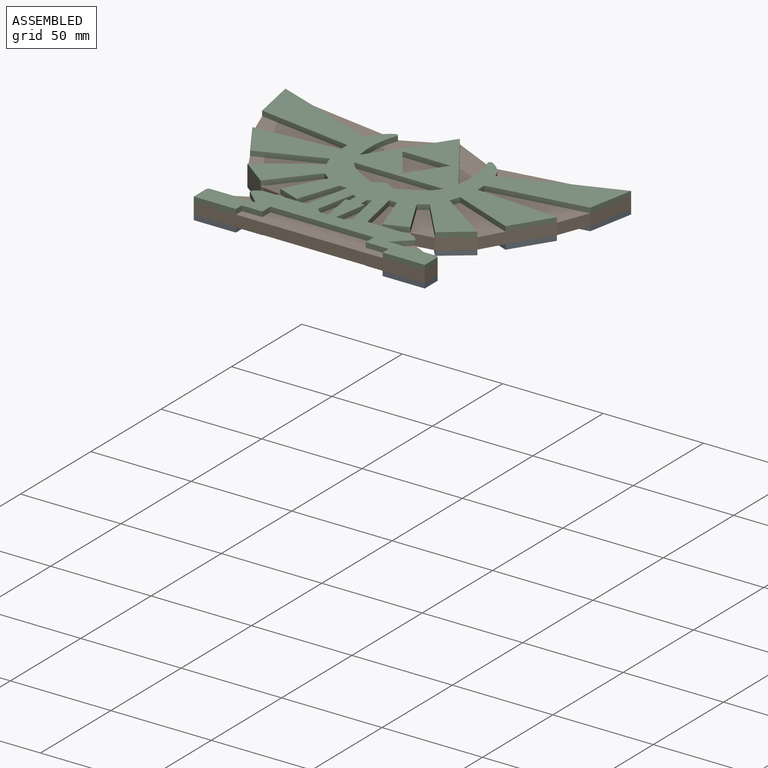
[diagram: assembled view]
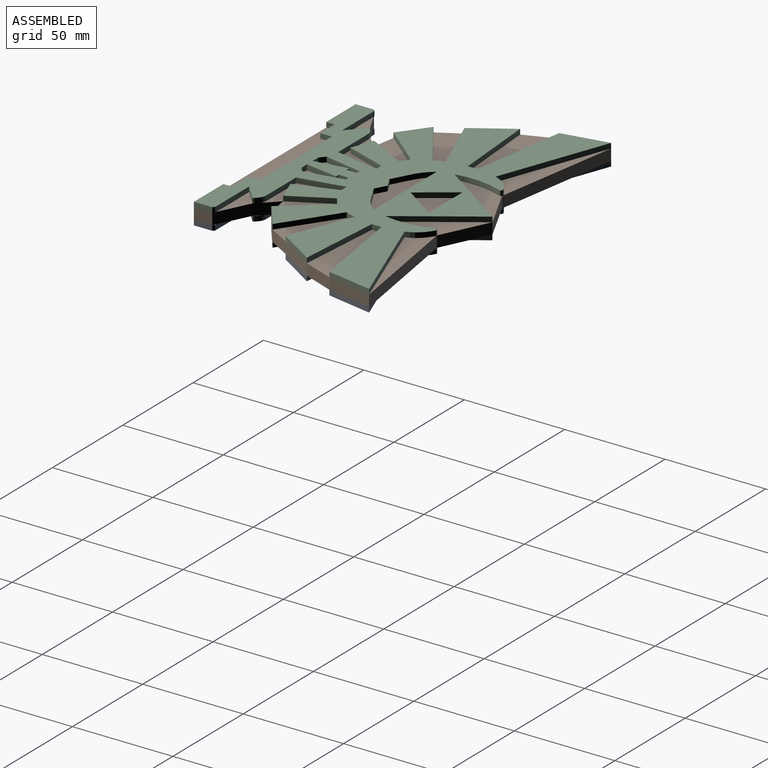
[diagram: assembled view, second angle]
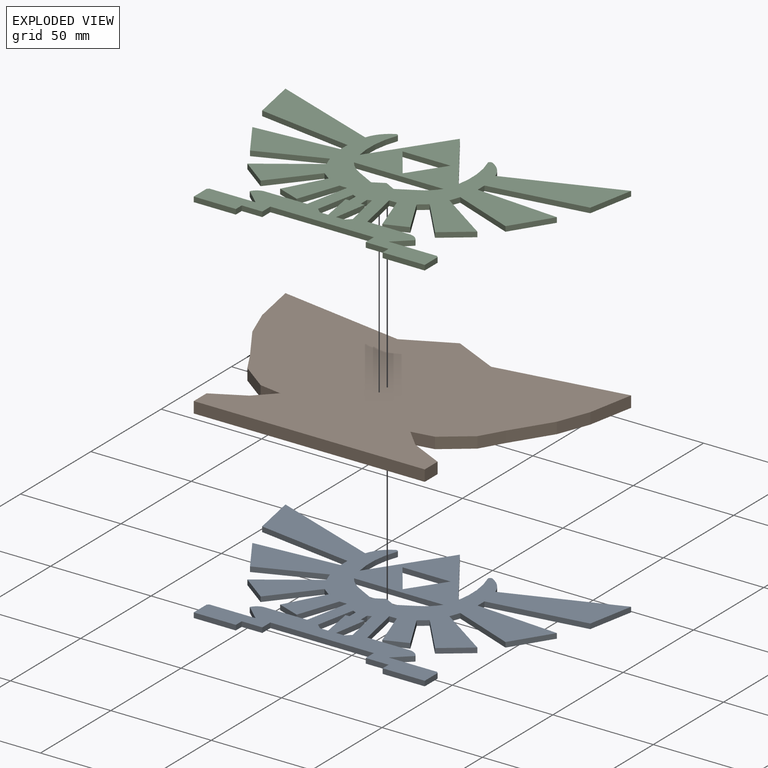
[diagram: exploded view]
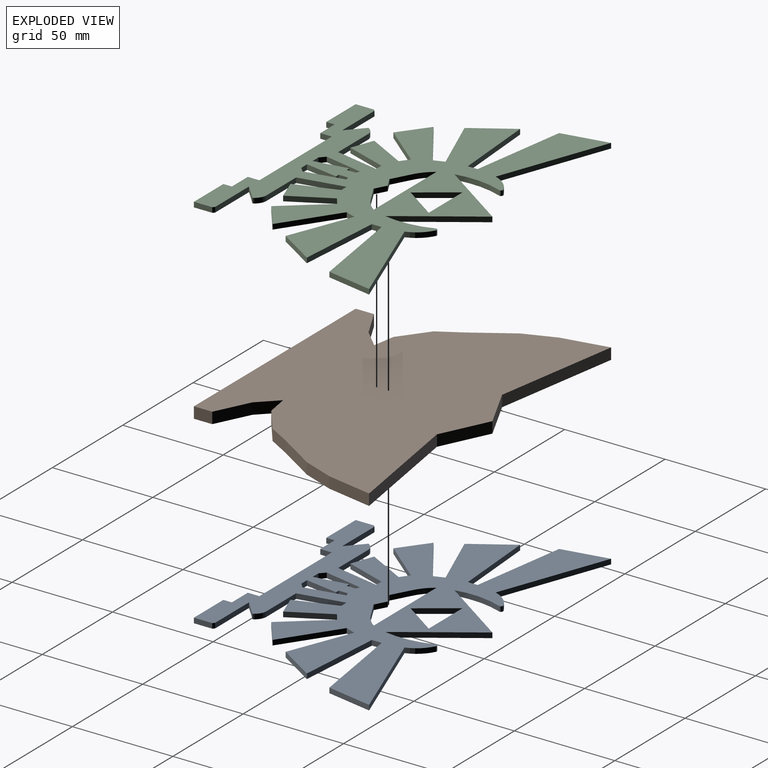
[diagram: exploded view, second angle]
ASSEMBLY  parts=3 mates=4
PART A: 93 faces, bbox 172.1x107.9x2.5 mm
  f0: plane 9.11x2.51mm, normal (1,0,0), area 22.9mm2, adj f1,f2,f91,f92
  f1: plane 20.96x2.51mm, normal (0,-1,0), area 52.7mm2, adj f0,f3,f91,f92
  f2: plane 2.51x0.84mm, normal (0.71,0.71,0), area 3mm2, adj f0,f4,f91,f92
  f3: plane 4.2x2.51mm, normal (-1,0,0), area 10.6mm2, adj f1,f72,f91,f92
  f4: plane 24.12x2.51mm, normal (0,1,0), area 60.6mm2, adj f2,f88,f91,f92
  f5: plane 20.96x2.51mm, normal (0,-1,0), area 52.7mm2, adj f6,f7,f91,f92
  f6: plane 4.2x2.51mm, normal (1,0,0), area 10.6mm2, adj f5,f89,f91,f92
  f7: plane 9.11x2.51mm, normal (-1,0,0), area 22.9mm2, adj f5,f9,f91,f92
  f8: plane 22.98x2.51mm, normal (0,1,0), area 57.8mm2, adj f9,f90,f91,f92
  f9: plane 2.51x0.84mm, normal (-0.71,0.71,0), area 3mm2, adj f7,f8,f91,f92
  f10: plane 5.6x3.02mm, normal (0.47,0.88,0), area 16mm2, adj f11,f16,f91,f92
  f11: plane 8.69x4.68mm, normal (-0.47,0.88,0), area 24.8mm2, adj f10,f12,f91,f92
  f12: cylinder r=21.14mm len=8mm, axis (0,0,1), area 27mm2, adj f11,f13,f91,f92
  f13: plane 44.58x2.51mm, normal (0,-1,0), area 112.1mm2, adj f12,f14,f91,f92
  f14: cylinder r=21.14mm len=8mm, axis (0,0,1), area 27mm2, adj f13,f15,f91,f92
  f15: plane 8.69x4.68mm, normal (0.47,0.88,0), area 24.8mm2, adj f14,f16,f91,f92
  f16: plane 5.6x3.02mm, normal (-0.47,0.88,0), area 16mm2, adj f10,f15,f91,f92
  f17: plane 2.51x1.91mm, normal (-0.35,-0.94,0), area 5.1mm2, adj f18,f19,f91,f92
  f18: plane 19.26x3.9mm, normal (0.98,-0.2,0), area 49.4mm2, adj f17,f64,f91,f92
  f19: plane 4.54x2.51mm, normal (-1,0,0), area 11.4mm2, adj f17,f67,f91,f92
  f20: plane 17.28x12.16mm, normal (0.82,0.58,0), area 53.1mm2, adj f21,f22,f91,f92
  f21: plane 17.28x11.8mm, normal (-0.83,0.56,0), area 52.6mm2, adj f20,f22,f91,f92
  f22: plane 23.96x2.51mm, normal (0,-1,0), area 60.2mm2, adj f20,f21,f91,f92
  f23: plane 4.54x2.51mm, normal (1,0,0), area 11.4mm2, adj f25,f68,f91,f92
  f24: plane 19.26x3.9mm, normal (-0.98,-0.2,0), area 49.4mm2, adj f25,f71,f91,f92
  f25: plane 2.51x1.91mm, normal (0.35,-0.94,0), area 5.1mm2, adj f23,f24,f91,f92
  f26: plane 22.02x4.46mm, normal (-0.98,0.2,0), area 56.5mm2, adj f27,f77,f91,f92
  f27: plane 3.78x2.51mm, normal (0,-1,0), area 9.5mm2, adj f26,f28,f91,f92
  f28: plane 20.4x7.01mm, normal (0.95,-0.33,0), area 54.2mm2, adj f27,f78,f91,f92
  f29: plane 19.46x10.49mm, normal (-0.88,0.47,0), area 55.6mm2, adj f30,f78,f91,f92
  f30: plane 4.26x3.19mm, normal (-0.6,-0.8,0), area 13.4mm2, adj f29,f31,f91,f92
  f31: plane 20.83x17.24mm, normal (0.77,-0.64,0), area 68mm2, adj f30,f32,f91,f92
  f32: plane 13.83x10.33mm, normal (-0.6,-0.8,0), area 43.4mm2, adj f31,f33,f91,f92
  f33: plane 26.69x18.22mm, normal (-0.56,0.83,0), area 81.3mm2, adj f32,f34,f91,f92
  f34: cylinder r=43.24mm len=5.08mm, axis (0,0,-1), area 13.6mm2, adj f33,f35,f91,f92
  f35: plane 31.19x12.36mm, normal (0.37,-0.93,0), area 84.4mm2, adj f34,f36,f91,f92
  f36: plane 19.11x12.22mm, normal (-0.84,-0.54,0), area 57.1mm2, adj f35,f37,f91,f92
  f37: plane 41.71x3.17mm, normal (-0.08,1,0), area 105.2mm2, adj f36,f38,f91,f92
  f38: plane 4.87x2.51mm, normal (-1,0,0), area 12.2mm2, adj f37,f39,f91,f92
  f39: plane 47.57x7.28mm, normal (-0.15,-0.99,0), area 121mm2, adj f38,f40,f91,f92
  f40: plane 22.81x4.37mm, normal (-0.98,-0.19,0), area 58.4mm2, adj f39,f41,f91,f92
  f41: plane 53.64x19.9mm, normal (0.35,0.94,0), area 143.9mm2, adj f40,f42,f91,f92
  f42: cylinder r=16.83mm len=9.79mm, axis (0,0,1), area 33.2mm2, adj f41,f43,f91,f92
  f43: cylinder r=0.84mm len=2.51mm, axis (0,0,1), area 1.7mm2, adj f42,f44,f91,f92
  f44: plane 2.51x0.29mm, normal (0.35,0.94,0), area 0.8mm2, adj f43,f45,f91,f92
  f45: cylinder r=0.84mm len=2.51mm, axis (0,0,1), area 3.3mm2, adj f44,f46,f91,f92
  f46: cylinder r=42.92mm len=23.69mm, axis (0,0,1), area 60.6mm2, adj f45,f47,f91,f92
  f47: plane 36.12x24.6mm, normal (-0.83,0.56,0), area 109.9mm2, adj f46,f48,f91,f92
  f48: plane 36.12x24.6mm, normal (0.83,0.56,0), area 109.9mm2, adj f47,f49,f91,f92
  f49: cylinder r=42.92mm len=23.69mm, axis (0,0,1), area 60.6mm2, adj f48,f50,f91,f92
  f50: cylinder r=0.84mm len=2.51mm, axis (0,0,1), area 3.3mm2, adj f49,f51,f91,f92
  f51: plane 2.51x0.29mm, normal (-0.35,0.94,0), area 0.8mm2, adj f50,f52,f91,f92
  f52: cylinder r=0.84mm len=2.51mm, axis (0,0,1), area 1.7mm2, adj f51,f53,f91,f92
  f53: cylinder r=16.83mm len=9.79mm, axis (0,0,1), area 33.2mm2, adj f52,f79,f91,f92
  f54: plane 4.87x2.51mm, normal (1,0,0), area 12.2mm2, adj f81,f82,f91,f92
  f55: cylinder r=43.28mm len=5.08mm, axis (0,0,-1), area 13.6mm2, adj f56,f84,f91,f92
  f56: plane 26.69x18.22mm, normal (0.56,0.83,0), area 81.3mm2, adj f55,f57,f91,f92
  f57: plane 13.83x10.33mm, normal (0.6,-0.8,0), area 43.4mm2, adj f56,f58,f91,f92
  f58: plane 20.83x17.24mm, normal (-0.77,-0.64,0), area 68mm2, adj f57,f59,f91,f92
  f59: plane 4.26x3.19mm, normal (0.6,-0.8,0), area 13.4mm2, adj f58,f60,f91,f92
  f60: plane 19.46x10.49mm, normal (0.88,0.47,0), area 55.6mm2, adj f59,f85,f91,f92
  f61: plane 20.4x7.01mm, normal (-0.95,-0.33,0), area 54.2mm2, adj f62,f85,f91,f92
  f62: plane 3.78x2.51mm, normal (0,-1,0), area 9.5mm2, adj f61,f63,f91,f92
  f63: plane 22.02x4.46mm, normal (0.98,0.2,0), area 56.5mm2, adj f62,f86,f91,f92
  f64: plane 2.55x2.51mm, normal (0.68,0.74,0), area 8.7mm2, adj f18,f65,f91,f92
  f65: plane 4.09x2.51mm, normal (0,1,0), area 10.3mm2, adj f64,f66,f91,f92
  f66: plane 16.35x2.74mm, normal (-0.99,-0.17,0), area 41.7mm2, adj f65,f67,f91,f92
  f67: plane 2.51x1.91mm, normal (0,1,0), area 4.8mm2, adj f19,f66,f91,f92
  f68: plane 2.51x1.91mm, normal (0,1,0), area 4.8mm2, adj f23,f69,f91,f92
  f69: plane 16.35x2.74mm, normal (0.99,-0.17,0), area 41.7mm2, adj f68,f70,f91,f92
  f70: plane 4.09x2.51mm, normal (0,1,0), area 10.3mm2, adj f69,f71,f91,f92
  f71: plane 2.55x2.51mm, normal (-0.68,0.74,0), area 8.7mm2, adj f24,f70,f91,f92
  f72: plane 11.36x2.51mm, normal (0,-1,0), area 28.6mm2, adj f3,f73,f91,f92
  f73: plane 5.75x2.51mm, normal (-1,0,0), area 14.5mm2, adj f72,f74,f91,f92
  f74: plane 51.5x2.51mm, normal (0,-1,0), area 129.5mm2, adj f73,f75,f91,f92
  f75: plane 5.75x2.51mm, normal (1,0,0), area 14.5mm2, adj f74,f89,f91,f92
  f76: cylinder r=6.1mm len=4.68mm, axis (0,0,1), area 15mm2, adj f77,f90,f91,f92
  f77: plane 21.58x2.51mm, normal (0,1,0), area 54.3mm2, adj f26,f76,f91,f92
  f78: plane 11.1x4.12mm, normal (-0.35,-0.94,0), area 29.8mm2, adj f28,f29,f91,f92
  f79: plane 53.64x19.9mm, normal (-0.35,0.94,0), area 143.9mm2, adj f53,f80,f91,f92
  f80: plane 22.81x4.37mm, normal (0.98,-0.19,0), area 58.4mm2, adj f79,f81,f91,f92
  f81: plane 47.57x7.28mm, normal (0.15,-0.99,0), area 121mm2, adj f54,f80,f91,f92
  f82: plane 41.71x3.17mm, normal (0.08,1,0), area 105.2mm2, adj f54,f83,f91,f92
  f83: plane 19.11x12.22mm, normal (0.84,-0.54,0), area 57.1mm2, adj f82,f84,f91,f92
  f84: plane 31.19x12.36mm, normal (-0.37,-0.93,0), area 84.4mm2, adj f55,f83,f91,f92
  f85: plane 11.1x4.12mm, normal (0.35,-0.94,0), area 29.8mm2, adj f60,f61,f91,f92
  f86: plane 21.58x2.51mm, normal (0,1,0), area 54.3mm2, adj f63,f87,f91,f92
  f87: cylinder r=6.1mm len=4.68mm, axis (0,0,1), area 15mm2, adj f86,f88,f91,f92
  f88: plane 8.1x7.44mm, normal (0.68,-0.74,0), area 27.7mm2, adj f4,f87,f91,f92
  f89: plane 10.23x2.51mm, normal (0,-1,0), area 25.7mm2, adj f6,f75,f91,f92
  f90: plane 8.1x7.44mm, normal (-0.68,-0.74,0), area 27.7mm2, adj f8,f76,f91,f92
  f91: plane 172.08x107.93mm, normal (0,0,-1), area 8143.2mm2, adj f0,f1,f2,f3,f4,f5,f6,f7
  f92: plane 172.08x107.93mm, normal (0,0,1), area 8143.2mm2, adj f0,f1,f2,f3,f4,f5,f6,f7
PART B: 25 faces, bbox 172.1x107.9x5.6 mm
  f0: plane 11.01x5.59mm, normal (-0.16,-0.99,0), area 62.4mm2, adj f1,f22,f23,f24
  f1: plane 9.03x8.81mm, normal (-0.72,0.7,0), area 70.5mm2, adj f0,f2,f23,f24
  f2: plane 15.72x8.27mm, normal (-0.47,0.88,0), area 99.3mm2, adj f1,f3,f23,f24
  f3: plane 9.11x5.59mm, normal (-1,0,0), area 50.9mm2, adj f2,f4,f23,f24
  f4: plane 115x5.59mm, normal (0,-1,0), area 642.6mm2, adj f3,f5,f23,f24
  f5: plane 9.11x5.59mm, normal (1,0,0), area 50.9mm2, adj f4,f6,f23,f24
  f6: plane 16.85x8.27mm, normal (0.44,0.9,0), area 104.9mm2, adj f5,f7,f23,f24
  f7: plane 9.03x8.81mm, normal (0.72,0.7,0), area 70.5mm2, adj f6,f8,f23,f24
  f8: plane 11.01x5.59mm, normal (0.16,-0.99,0), area 62.4mm2, adj f7,f9,f23,f24
  f9: plane 13.83x10.33mm, normal (0.6,-0.8,0), area 96.5mm2, adj f8,f10,f23,f24
  f10: plane 10.94x6.35mm, normal (0.86,-0.5,0), area 70.7mm2, adj f9,f11,f23,f24
  f11: plane 19.11x12.22mm, normal (0.84,-0.54,0), area 126.8mm2, adj f10,f12,f23,f24
  f12: plane 15.32x5.86mm, normal (0.93,-0.36,0), area 91.7mm2, adj f11,f13,f23,f24
  f13: plane 22.81x5.59mm, normal (0.98,-0.19,0), area 129.8mm2, adj f12,f14,f23,f24
  f14: plane 62.66x10.08mm, normal (-0.16,0.99,0), area 354.7mm2, adj f13,f15,f23,f24
  f15: plane 23.38x11.24mm, normal (0.43,0.9,0), area 144.9mm2, adj f14,f16,f23,f24
  f16: plane 23.09x11.34mm, normal (-0.44,0.9,0), area 143.7mm2, adj f15,f17,f23,f24
  f17: plane 62.95x10.18mm, normal (0.16,0.99,0), area 356.3mm2, adj f16,f18,f23,f24
  f18: plane 22.81x5.59mm, normal (-0.98,-0.19,0), area 129.8mm2, adj f17,f19,f23,f24
  f19: plane 15.32x5.86mm, normal (-0.93,-0.36,0), area 91.7mm2, adj f18,f20,f23,f24
  f20: plane 19.11x12.22mm, normal (-0.84,-0.54,0), area 126.8mm2, adj f19,f21,f23,f24
  f21: plane 10.94x6.35mm, normal (-0.86,-0.5,0), area 70.7mm2, adj f20,f22,f23,f24
  f22: plane 13.83x10.33mm, normal (-0.6,-0.8,0), area 96.5mm2, adj f0,f21,f23,f24
  f23: plane 172.08x107.93mm, normal (0,0,-1), area 13088.9mm2, adj f0,f1,f2,f3,f4,f5,f6,f7
  f24: plane 172.08x107.93mm, normal (0,0,1), area 13088.9mm2, adj f0,f1,f2,f3,f4,f5,f6,f7
PART C: same geometry as A
PLACE A t=(-84.28,-19.05,27.58)mm
PLACE B t=(-84.28,-19.05,33.17)mm
PLACE C t=(-84.28,-19.05,35.68)mm
MATE cylindrical B.f23 <-> A.f92  axis (0,0,-1) through (-12.82,-4.9,39.52)mm
MATE planar B.f24 <-> C.f91  axis (0,0,1) through (-12.75,-55.72,45.11)mm
MATE cylindrical B.f24 <-> C.f91  axis (0,0,1) through (-12.82,-4.9,45.11)mm
MATE planar A.f92 <-> B.f23  axis (0,0,1) through (-1.03,-28.34,39.52)mm
